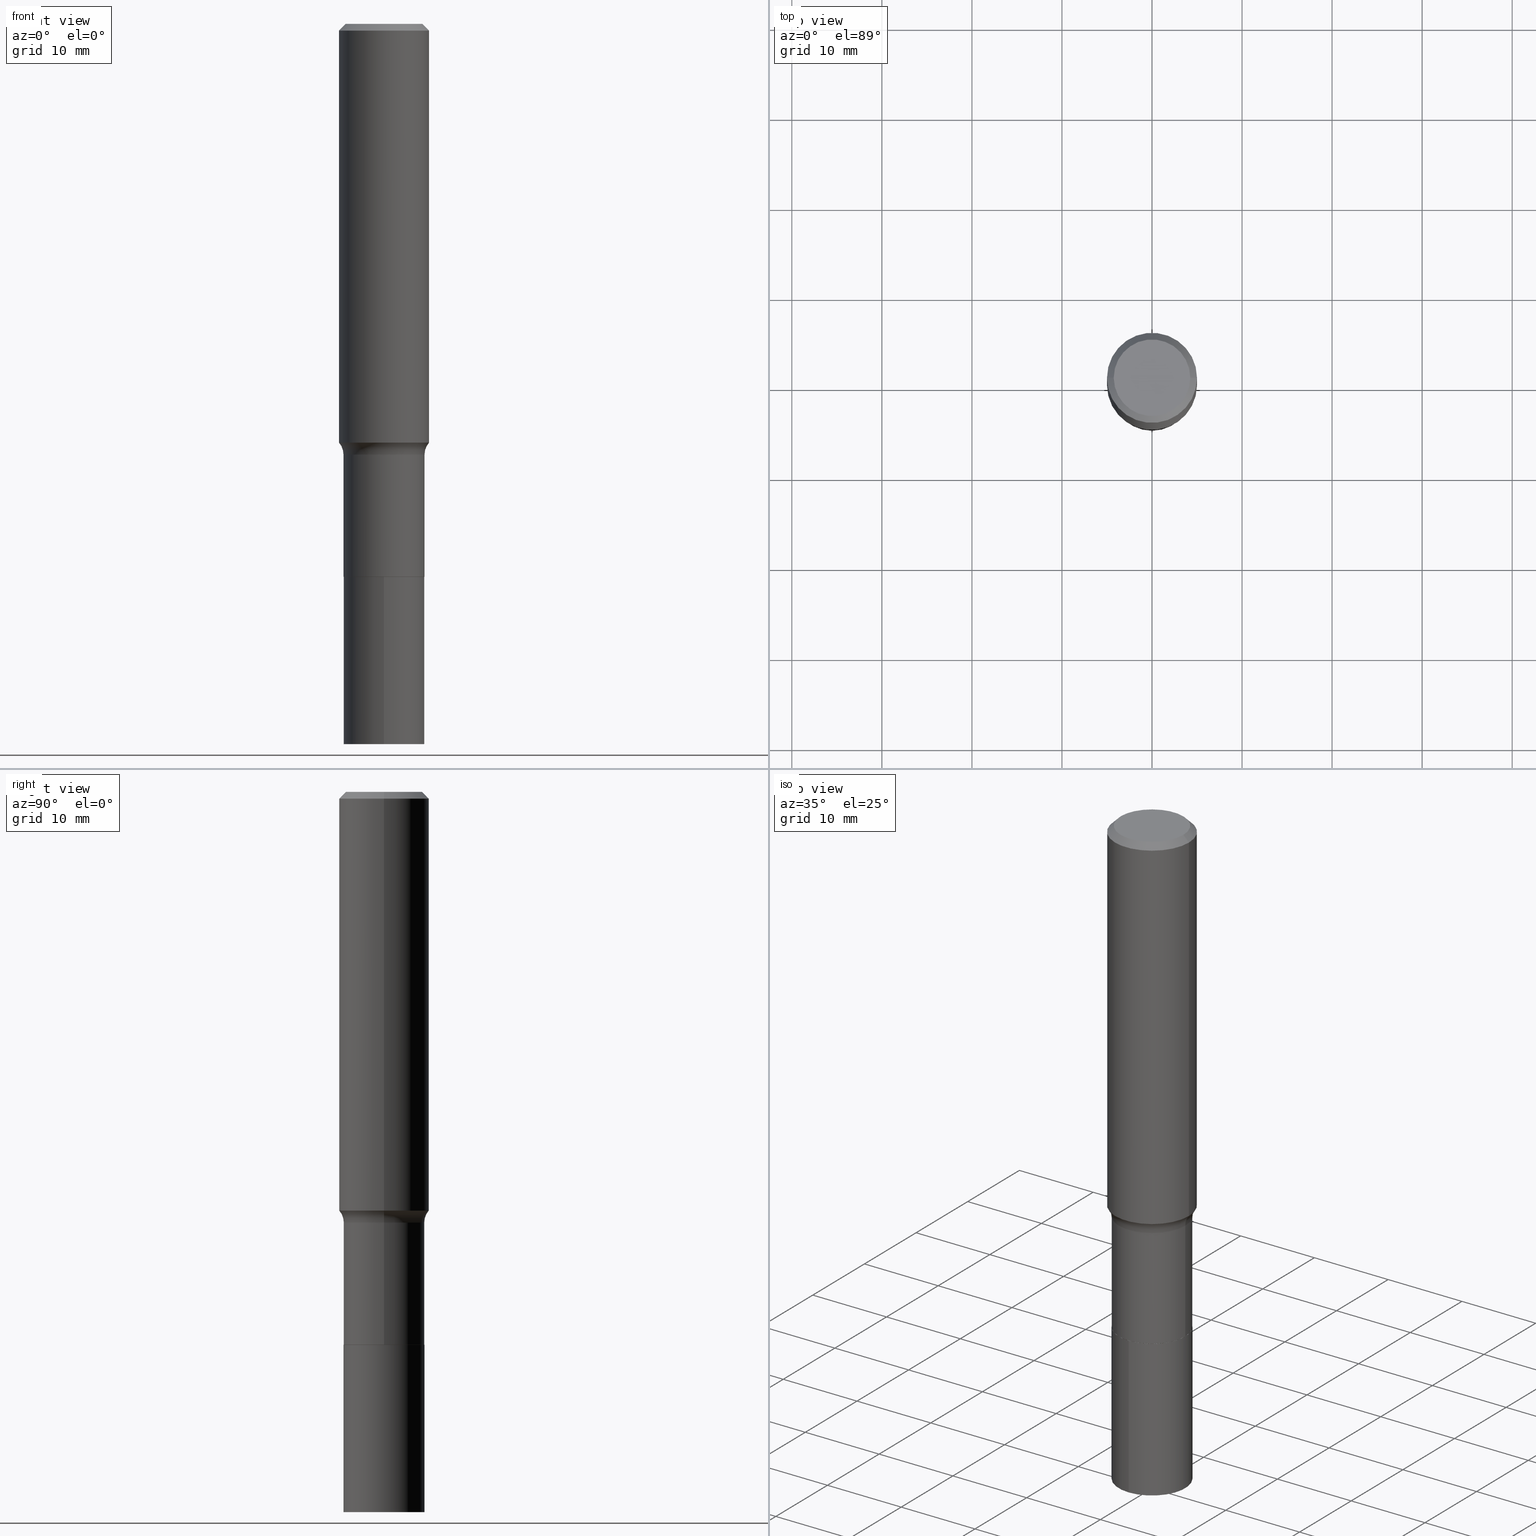
[diagram: canonical four-view strip — front | top / right | iso, engineering-drawing reading convention]
A machine part, canonical four-view strip (front | top / right | iso — engineering-drawing reading convention). The complete STEP part file that produces these views, byte-faithful:
ISO-10303-21;
HEADER;
FILE_DESCRIPTION (( 'STEP AP203' ),
    '1' );
FILE_NAME ('67137.STEP',
    '2024-04-19T15:58:38',
    ( '' ),
    ( '' ),
    'SwSTEP 2.0',
    'SolidWorks 2023',
    '' );
FILE_SCHEMA (( 'CONFIG_CONTROL_DESIGN' ));
ENDSEC;

DATA;
#1 = EDGE_LOOP ( 'NONE', ( #251, #81, #407, #382 ) ) ;
#2 = CARTESIAN_POINT ( 'NONE',  ( 1.258726456399094407E-15, 0.1771499999999915920, -2.417600000000000637 ) ) ;
#3 = ORIENTED_EDGE ( 'NONE', *, *, #271, .T. ) ;
#4 = AXIS2_PLACEMENT_3D ( 'NONE', #375, #285, #299 ) ;
#5 = AXIS2_PLACEMENT_3D ( 'NONE', #73, #464, #401 ) ;
#6 = PERSON ( 'UNSPECIFIED', 'UNSPECIFIED', 'UNSPECIFIED', ('UNSPECIFIED'), ('UNSPECIFIED'), ('UNSPECIFIED') ) ;
#7 = DIRECTION ( 'NONE',  ( -2.445468806185136597E-29, 3.491481338843145583E-15, 1.000000000000000000 ) ) ;
#8 = DIRECTION ( 'NONE',  ( 1.000000000000000000, -6.982962677686269866E-15, 0.000000000000000000 ) ) ;
#9 = EDGE_CURVE ( 'NONE', #185, #43, #102, .T. ) ;
#10 = DIRECTION ( 'NONE',  ( -0.7071067811865457964, 2.468850131082238917E-15, -0.7071067811865492381 ) ) ;
#11 = CARTESIAN_POINT ( 'NONE',  ( 0.000000000000000000, 0.000000000000000000, 0.000000000000000000 ) ) ;
#12 = DIRECTION ( 'NONE',  ( -2.445468806185136597E-29, 3.491481338843145583E-15, 1.000000000000000000 ) ) ;
#13 = AXIS2_PLACEMENT_3D ( 'NONE', #114, #7, #41 ) ;
#14 = CIRCLE ( 'NONE', #5, 0.1766500000000000015 ) ;
#15 = DIRECTION ( 'NONE',  ( 1.000000000000000000, -6.982962677686266711E-15, 0.000000000000000000 ) ) ;
#16 = CARTESIAN_POINT ( 'NONE',  ( -1.001697619218021790E-46, 1.430158722866389718E-32, 4.096137381448108366E-18 ) ) ;
#17 = EDGE_LOOP ( 'NONE', ( #402, #3, #323, #286 ) ) ;
#18 = CARTESIAN_POINT ( 'NONE',  ( -0.1968500000000000527, -1.849167880407326768E-15, -0.02952750000000019942 ) ) ;
#19 = ORIENTED_EDGE ( 'NONE', *, *, #326, .T. ) ;
#20 = APPROVAL ( #357, 'UNSPECIFIED' ) ;
#21 = DIRECTION ( 'NONE',  ( -2.445468806185136877E-29, 3.491481338843145188E-15, 1.000000000000000000 ) ) ;
#22 = AXIS2_PLACEMENT_3D ( 'NONE', #128, #126, #345 ) ;
#23 = VECTOR ( 'NONE', #144, 39.37007874015748143 ) ;
#24 = ADVANCED_BREP_SHAPE_REPRESENTATION ( '67137', ( #359, #206, #342 ), #88 ) ;
#25 = EDGE_CURVE ( 'NONE', #216, #330, #115, .T. ) ;
#26 = DIRECTION ( 'NONE',  ( 1.000000000000000000, -6.982962677686266711E-15, 4.876176775795935793E-29 ) ) ;
#27 = DIRECTION ( 'NONE',  ( 1.000000000000000000, 0.000000000000000000, 0.000000000000000000 ) ) ;
#28 = DIRECTION ( 'NONE',  ( -2.445468806185136597E-29, 3.491481338843145583E-15, 1.000000000000000000 ) ) ;
#29 = APPROVAL_PERSON_ORGANIZATION ( #463, #419, #264 ) ;
#30 = EDGE_CURVE ( 'NONE', #216, #255, #163, .T. ) ;
#31 = APPROVAL_ROLE ( '' ) ;
#32 = FACE_OUTER_BOUND ( 'NONE', #112, .T. ) ;
#33 = CC_DESIGN_PERSON_AND_ORGANIZATION_ASSIGNMENT ( #287, #77, ( #270 ) ) ;
#34 = DIRECTION ( 'NONE',  ( -6.982962677686265922E-15, -1.000000000000000000, 3.084220145260246224E-15 ) ) ;
#35 = ORIENTED_EDGE ( 'NONE', *, *, #179, .F. ) ;
#36 = ADVANCED_FACE ( 'NONE', ( #338 ), #262, .T. ) ;
#37 = CARTESIAN_POINT ( 'NONE',  ( 0.000000000000000000, 0.000000000000000000, 0.000000000000000000 ) ) ;
#38 = CONICAL_SURFACE ( 'NONE', #167, 0.1968500000000000527, 0.7853981633974458365 ) ;
#39 = ORIENTED_EDGE ( 'NONE', *, *, #439, .F. ) ;
#40 = VECTOR ( 'NONE', #50, 39.37007874015748143 ) ;
#41 = DIRECTION ( 'NONE',  ( 1.000000000000000000, -6.982962677686269866E-15, 0.000000000000000000 ) ) ;
#42 = ORIENTED_EDGE ( 'NONE', *, *, #446, .F. ) ;
#43 = VERTEX_POINT ( 'NONE', #376 ) ;
#44 = FACE_OUTER_BOUND ( 'NONE', #1, .T. ) ;
#45 = EDGE_CURVE ( 'NONE', #216, #111, #281, .T. ) ;
#46 = ORIENTED_EDGE ( 'NONE', *, *, #25, .F. ) ;
#47 = EDGE_CURVE ( 'NONE', #116, #111, #222, .T. ) ;
#48 = CONICAL_SURFACE ( 'NONE', #164, 0.1766500000000000015, 0.7853981633975849475 ) ;
#49 = APPROVAL_PERSON_ORGANIZATION ( #209, #20, #31 ) ;
#50 = DIRECTION ( 'NONE',  ( -2.445468806185136877E-29, 3.491481338843145188E-15, 1.000000000000000000 ) ) ;
#51 = LINE ( 'NONE', #195, #68 ) ;
#52 = ORIENTED_EDGE ( 'NONE', *, *, #165, .T. ) ;
#53 = EDGE_LOOP ( 'NONE', ( #220, #198, #370, #39 ) ) ;
#54 = CARTESIAN_POINT ( 'NONE',  ( 5.912165385833187270E-29, -8.441005284787188533E-15, -2.417600000000000193 ) ) ;
#55 = AXIS2_PLACEMENT_3D ( 'NONE', #337, #465, #150 ) ;
#56 = CARTESIAN_POINT ( 'NONE',  ( 0.1673224999999999851, -1.300749711163072594E-15, 4.096137381456741925E-18 ) ) ;
#57 = PRODUCT_RELATED_PRODUCT_CATEGORY ( 'detail', '', ( #139 ) ) ;
#58 = ORIENTED_EDGE ( 'NONE', *, *, #404, .T. ) ;
#59 = SHAPE_DEFINITION_REPRESENTATION ( #352, #24 ) ;
#60 = ADVANCED_FACE ( 'NONE', ( #226 ), #380, .F. ) ;
#61 = CARTESIAN_POINT ( 'NONE',  ( 5.912165385833187270E-29, -8.441005284787188533E-15, -2.417600000000000193 ) ) ;
#62 = AXIS2_PLACEMENT_3D ( 'NONE', #335, #413, #91 ) ;
#63 = DIRECTION ( 'NONE',  ( -6.982962677686265922E-15, -1.000000000000000000, 3.084220145260246224E-15 ) ) ;
#64 = ADVANCED_FACE ( 'NONE', ( #306 ), #48, .T. ) ;
#65 = DIRECTION ( 'NONE',  ( 1.000000000000000000, -6.982962677686270655E-15, 0.000000000000000000 ) ) ;
#66 = DATE_TIME_ROLE ( 'creation_date' ) ;
#67 = DIRECTION ( 'NONE',  ( 2.438088387897960049E-29, -3.491481338843145188E-15, -1.000000000000000000 ) ) ;
#68 = VECTOR ( 'NONE', #110, 39.37007874015748143 ) ;
#69 = CIRCLE ( 'NONE', #294, 0.1968500000000001915 ) ;
#70 = CC_DESIGN_APPROVAL ( #20, ( #270 ) ) ;
#71 = CARTESIAN_POINT ( 'NONE',  ( 7.220858017463210361E-31, -1.030947152326916856E-16, -0.02952750000000019942 ) ) ;
#72 = ORIENTED_EDGE ( 'NONE', *, *, #151, .T. ) ;
#73 = CARTESIAN_POINT ( 'NONE',  ( 5.912165385833187270E-29, -8.441005284787188533E-15, -2.417600000000000193 ) ) ;
#74 = DIRECTION ( 'NONE',  ( -2.446041617737093913E-29, 3.490661040098333500E-15, 1.000000000000000000 ) ) ;
#75 = DIRECTION ( 'NONE',  ( -2.445468806185136597E-29, 3.491481338843145583E-15, 1.000000000000000000 ) ) ;
#76 = VERTEX_POINT ( 'NONE', #158 ) ;
#77 = PERSON_AND_ORGANIZATION_ROLE ( 'creator' ) ;
#78 = ADVANCED_FACE ( 'NONE', ( #300 ), #438, .F. ) ;
#79 = DIRECTION ( 'NONE',  ( -6.982962677686265922E-15, -1.000000000000000000, 3.490661040098333500E-15 ) ) ;
#80 = VECTOR ( 'NONE', #191, 39.37007874015748143 ) ;
#81 = ORIENTED_EDGE ( 'NONE', *, *, #159, .T. ) ;
#82 = CARTESIAN_POINT ( 'NONE',  ( 0.1968500000000000527, -1.453583746094018101E-15, -0.02952750000000019942 ) ) ;
#83 = EDGE_LOOP ( 'NONE', ( #221, #72, #147, #290 ) ) ;
#84 = DIRECTION ( 'NONE',  ( 7.105427357601001859E-15, 1.000000000000000000, -3.491481338843145583E-15 ) ) ;
#85 = ORIENTED_EDGE ( 'NONE', *, *, #25, .T. ) ;
#86 = LINE ( 'NONE', #364, #80 ) ;
#87 = DIRECTION ( 'NONE',  ( 1.000000000000000000, -6.982962677686266711E-15, 4.876176775795935793E-29 ) ) ;
#88 =( GEOMETRIC_REPRESENTATION_CONTEXT ( 3 ) GLOBAL_UNCERTAINTY_ASSIGNED_CONTEXT ( ( #447 ) ) GLOBAL_UNIT_ASSIGNED_CONTEXT ( ( #305, #354, #104 ) ) REPRESENTATION_CONTEXT ( 'NONE', 'WORKASPACE' ) );
#89 = ORIENTED_EDGE ( 'NONE', *, *, #30, .F. ) ;
#90 = CARTESIAN_POINT ( 'NONE',  ( 0.1968500000000000527, -1.477690918335233688E-15, -0.02952750000000019942 ) ) ;
#91 = DIRECTION ( 'NONE',  ( 1.000000000000000000, -6.982962677686268288E-15, 0.000000000000000000 ) ) ;
#92 = DIRECTION ( 'NONE',  ( -2.445468806185136597E-29, 3.491481338843145583E-15, 1.000000000000000000 ) ) ;
#93 = ORIENTED_EDGE ( 'NONE', *, *, #151, .F. ) ;
#94 = TOROIDAL_SURFACE ( 'NONE', #356, 0.2571499999999999342, 0.07999999999999998779 ) ;
#95 = AXIS2_PLACEMENT_3D ( 'NONE', #61, #171, #450 ) ;
#96 = DIRECTION ( 'NONE',  ( 1.000000000000000000, -6.982962677686265922E-15, 4.883557194083112901E-29 ) ) ;
#97 = DIRECTION ( 'NONE',  ( -6.982962677686265922E-15, -1.000000000000000000, 3.084220145260246224E-15 ) ) ;
#98 = DIRECTION ( 'NONE',  ( -2.445468806185136597E-29, 3.491481338843145583E-15, 1.000000000000000000 ) ) ;
#99 = DIRECTION ( 'NONE',  ( 1.000000000000000000, -6.982962677686267499E-15, 4.876294436782262290E-29 ) ) ;
#100 = PRODUCT_DEFINITION ( 'UNKNOWN', '', #270, #267 ) ;
#101 = DIRECTION ( 'NONE',  ( 1.000000000000000000, -6.982962677686265922E-15, 4.883557194083112901E-29 ) ) ;
#102 = CIRCLE ( 'NONE', #367, 0.1771500000000000019 ) ;
#103 = APPROVAL_PERSON_ORGANIZATION ( #177, #125, #239 ) ;
#104 =( NAMED_UNIT ( * ) SI_UNIT ( $, .STERADIAN. ) SOLID_ANGLE_UNIT ( ) );
#105 = CALENDAR_DATE ( 2024, 19, 4 ) ;
#106 = FACE_OUTER_BOUND ( 'NONE', #215, .T. ) ;
#107 = LINE ( 'NONE', #459, #23 ) ;
#108 = VECTOR ( 'NONE', #119, 39.37007874015748143 ) ;
#109 = ORIENTED_EDGE ( 'NONE', *, *, #418, .F. ) ;
#110 = DIRECTION ( 'NONE',  ( -0.7071067811866441621, 7.493145998870704414E-15, 0.7071067811864508723 ) ) ;
#111 = VERTEX_POINT ( 'NONE', #157 ) ;
#112 = EDGE_LOOP ( 'NONE', ( #93, #461, #52, #218 ) ) ;
#113 = PERSON_AND_ORGANIZATION ( #6, #350 ) ;
#114 = CARTESIAN_POINT ( 'NONE',  ( 5.912165385833187270E-29, -8.441005284787188533E-15, -2.417600000000000193 ) ) ;
#115 = CIRCLE ( 'NONE', #175, 0.1968500000000001915 ) ;
#116 = VERTEX_POINT ( 'NONE', #292 ) ;
#117 = LOCAL_TIME ( 11, 58, 38.00000000000000000, #456 ) ;
#118 = EDGE_CURVE ( 'NONE', #330, #116, #453, .T. ) ;
#119 = DIRECTION ( 'NONE',  ( 0.7071067811865457964, -7.319954787623249734E-15, -0.7071067811865492381 ) ) ;
#120 = ORIENTED_EDGE ( 'NONE', *, *, #45, .F. ) ;
#121 = DIRECTION ( 'NONE',  ( 1.000000000000000000, -6.982962677686266711E-15, 4.876176775795935793E-29 ) ) ;
#122 = ORIENTED_EDGE ( 'NONE', *, *, #208, .T. ) ;
#123 = EDGE_LOOP ( 'NONE', ( #320, #154 ) ) ;
#124 = VERTEX_POINT ( 'NONE', #2 ) ;
#125 = APPROVAL ( #137, 'UNSPECIFIED' ) ;
#126 = DIRECTION ( 'NONE',  ( 2.446041617737093913E-29, -3.490661040098333500E-15, -1.000000000000000000 ) ) ;
#127 = DIRECTION ( 'NONE',  ( -2.438088387897960049E-29, 3.491481338843145188E-15, 1.000000000000000000 ) ) ;
#128 = CARTESIAN_POINT ( 'NONE',  ( 5.912165385833187270E-29, -8.441005284787188533E-15, -2.417600000000000193 ) ) ;
#129 = AXIS2_PLACEMENT_3D ( 'NONE', #414, #347, #415 ) ;
#130 = AXIS2_PLACEMENT_3D ( 'NONE', #244, #138, #63 ) ;
#131 = CLOSED_SHELL ( 'NONE', ( #64, #197, #214, #318, #388, #36, #273, #194, #377, #363, #60, #176 ) ) ;
#132 = APPLICATION_CONTEXT ( 'configuration controlled 3d designs of mechanical parts and assemblies' ) ;
#133 = COORDINATED_UNIVERSAL_TIME_OFFSET ( 5, 0, .BEHIND. ) ;
#134 = CARTESIAN_POINT ( 'NONE',  ( 4.606040496449705381E-29, -6.576205101711065057E-15, -1.883500000000000174 ) ) ;
#135 = LINE ( 'NONE', #371, #40 ) ;
#136 = DIRECTION ( 'NONE',  ( 1.000000000000000000, -6.982962677686267499E-15, 4.876294436782262290E-29 ) ) ;
#137 = APPROVAL_STATUS ( 'not_yet_approved' ) ;
#138 = DIRECTION ( 'NONE',  ( -2.446041617737093913E-29, 3.490661040098333894E-15, 1.000000000000000000 ) ) ;
#139 = PRODUCT ( '67137', '67137', '', ( #393 ) ) ;
#140 = CARTESIAN_POINT ( 'NONE',  ( -5.008488096090108951E-47, 7.150793614331948590E-33, 2.048068690724054183E-18 ) ) ;
#141 = DATE_AND_TIME ( #385, #117 ) ;
#142 = CARTESIAN_POINT ( 'NONE',  ( 0.000000000000000000, 0.000000000000000000, 0.000000000000000000 ) ) ;
#143 = EDGE_LOOP ( 'NONE', ( #188, #327, #399, #190 ) ) ;
#144 = DIRECTION ( 'NONE',  ( 0.7071067811866441621, -2.468850131083269169E-15, 0.7071067811864508723 ) ) ;
#145 = EDGE_CURVE ( 'NONE', #255, #223, #217, .T. ) ;
#146 = DIMENSIONAL_EXPONENTS ( 1.000000000000000000, 0.000000000000000000, 0.000000000000000000, 0.000000000000000000, 0.000000000000000000, 0.000000000000000000, 0.000000000000000000 ) ;
#147 = ORIENTED_EDGE ( 'NONE', *, *, #145, .T. ) ;
#148 = FACE_OUTER_BOUND ( 'NONE', #17, .T. ) ;
#149 = ORIENTED_EDGE ( 'NONE', *, *, #118, .T. ) ;
#150 = DIRECTION ( 'NONE',  ( 1.000000000000000000, -6.982962677686266711E-15, 0.000000000000000000 ) ) ;
#151 = EDGE_CURVE ( 'NONE', #280, #255, #250, .T. ) ;
#152 = ORIENTED_EDGE ( 'NONE', *, *, #118, .F. ) ;
#153 = VECTOR ( 'NONE', #21, 39.37007874015748143 ) ;
#154 = ORIENTED_EDGE ( 'NONE', *, *, #260, .T. ) ;
#155 = LOCAL_TIME ( 11, 58, 38.00000000000000000, #366 ) ;
#156 = CC_DESIGN_DATE_AND_TIME_ASSIGNMENT ( #242, #66, ( #100 ) ) ;
#157 = CARTESIAN_POINT ( 'NONE',  ( 0.1771499999999999742, -7.813236940063187450E-15, -1.883500000000000174 ) ) ;
#158 = CARTESIAN_POINT ( 'NONE',  ( 0.1766500000000000015, -9.674545641800469497E-15, -2.417600000000000193 ) ) ;
#159 = EDGE_CURVE ( 'NONE', #458, #76, #405, .T. ) ;
#160 = VERTEX_POINT ( 'NONE', #254 ) ;
#161 = CARTESIAN_POINT ( 'NONE',  ( 0.1968500000000001915, -7.767243999372021400E-15, -1.830927098234927053 ) ) ;
#162 = SECURITY_CLASSIFICATION_LEVEL ( 'unclassified' ) ;
#163 = LINE ( 'NONE', #265, #302 ) ;
#164 = AXIS2_PLACEMENT_3D ( 'NONE', #343, #266, #8 ) ;
#165 = EDGE_CURVE ( 'NONE', #181, #223, #468, .T. ) ;
#166 = ORIENTED_EDGE ( 'NONE', *, *, #233, .T. ) ;
#167 = AXIS2_PLACEMENT_3D ( 'NONE', #219, #259, #409 ) ;
#168 = CC_DESIGN_DATE_AND_TIME_ASSIGNMENT ( #252, #403, ( #322 ) ) ;
#169 = AXIS2_PLACEMENT_3D ( 'NONE', #355, #241, #274 ) ;
#170 = PERSON_AND_ORGANIZATION ( #6, #350 ) ;
#171 = DIRECTION ( 'NONE',  ( -2.446041617737093913E-29, 3.490661040098333894E-15, 1.000000000000000000 ) ) ;
#172 = CARTESIAN_POINT ( 'NONE',  ( 0.1771500000000000574, -9.676291382469891790E-15, -2.417100000000000470 ) ) ;
#173 = CALENDAR_DATE ( 2024, 19, 4 ) ;
#174 = CARTESIAN_POINT ( 'NONE',  ( 5.912165385833187270E-29, -8.441005284787188533E-15, -2.417600000000000193 ) ) ;
#175 = AXIS2_PLACEMENT_3D ( 'NONE', #410, #12, #202 ) ;
#176 = ADVANCED_FACE ( 'NONE', ( #44 ), #349, .T. ) ;
#177 = PERSON_AND_ORGANIZATION ( #6, #350 ) ;
#178 = CARTESIAN_POINT ( 'NONE',  ( 7.220858017463210361E-31, -1.030947152326916856E-16, -0.02952750000000019942 ) ) ;
#179 = EDGE_CURVE ( 'NONE', #43, #124, #86, .T. ) ;
#180 = FACE_OUTER_BOUND ( 'NONE', #123, .T. ) ;
#181 = VERTEX_POINT ( 'NONE', #187 ) ;
#182 = TOROIDAL_SURFACE ( 'NONE', #441, 0.2571499999999999342, 0.07999999999999998779 ) ;
#183 = DIRECTION ( 'NONE',  ( 1.000000000000000000, -6.982962677686266711E-15, 4.876176775795935793E-29 ) ) ;
#184 = CONICAL_SURFACE ( 'NONE', #283, 0.1968500000000000527, 0.7853981633974458365 ) ;
#185 = VERTEX_POINT ( 'NONE', #295 ) ;
#186 = PERSON_AND_ORGANIZATION_ROLE ( 'classification_officer' ) ;
#187 = CARTESIAN_POINT ( 'NONE',  ( -0.1673224999999999851, 1.219954130253505460E-15, 4.096137381439757534E-18 ) ) ;
#188 = ORIENTED_EDGE ( 'NONE', *, *, #284, .F. ) ;
#189 = CARTESIAN_POINT ( 'NONE',  ( 2.126883191582343757E-28, 8.431349914202975217E-15, -3.149599999999999511 ) ) ;
#190 = ORIENTED_EDGE ( 'NONE', *, *, #47, .F. ) ;
#191 = DIRECTION ( 'NONE',  ( -2.446041617737093913E-29, 3.490661040098333500E-15, 1.000000000000000000 ) ) ;
#192 = AXIS2_PLACEMENT_3D ( 'NONE', #54, #127, #199 ) ;
#193 = ORIENTED_EDGE ( 'NONE', *, *, #298, .T. ) ;
#194 = ADVANCED_FACE ( 'NONE', ( #148 ), #437, .T. ) ;
#195 = CARTESIAN_POINT ( 'NONE',  ( -0.1766500000000000015, -7.185831542066971741E-15, -2.417600000000000193 ) ) ;
#196 = ORIENTED_EDGE ( 'NONE', *, *, #404, .F. ) ;
#197 = ADVANCED_FACE ( 'NONE', ( #429 ), #38, .T. ) ;
#198 = ORIENTED_EDGE ( 'NONE', *, *, #284, .T. ) ;
#199 = DIRECTION ( 'NONE',  ( 1.000000000000000000, -6.982962677686265922E-15, 4.876176775795935793E-29 ) ) ;
#200 = AXIS2_PLACEMENT_3D ( 'NONE', #310, #449, #97 ) ;
#201 = FACE_OUTER_BOUND ( 'NONE', #373, .T. ) ;
#202 = DIRECTION ( 'NONE',  ( 1.000000000000000000, -6.982962677686266711E-15, 0.000000000000000000 ) ) ;
#203 = CIRCLE ( 'NONE', #435, 0.1673224999999999851 ) ;
#204 = PERSON_AND_ORGANIZATION_ROLE ( 'design_owner' ) ;
#205 = DIRECTION ( 'NONE',  ( 1.000000000000000000, -6.982962677686266711E-15, 0.000000000000000000 ) ) ;
#206 = MANIFOLD_SOLID_BREP ( 'Body-Move/Copy2[2]', #131 ) ;
#207 = CYLINDRICAL_SURFACE ( 'NONE', #212, 0.1771500000000000019 ) ;
#208 = EDGE_CURVE ( 'NONE', #458, #316, #51, .T. ) ;
#209 = PERSON_AND_ORGANIZATION ( #6, #350 ) ;
#210 = DIRECTION ( 'NONE',  ( -1.000000000000000000, 6.982962677686265922E-15, -4.876176775795935793E-29 ) ) ;
#211 = AXIS2_PLACEMENT_3D ( 'NONE', #257, #432, #121 ) ;
#212 = AXIS2_PLACEMENT_3D ( 'NONE', #174, #351, #34 ) ;
#213 = CARTESIAN_POINT ( 'NONE',  ( -1.001697619218021790E-46, 1.430158722866389718E-32, 4.096137381448108366E-18 ) ) ;
#214 = ADVANCED_FACE ( 'NONE', ( #248 ), #398, .T. ) ;
#215 = EDGE_LOOP ( 'NONE', ( #436, #149, #249, #120 ) ) ;
#216 = VERTEX_POINT ( 'NONE', #161 ) ;
#217 = CIRCLE ( 'NONE', #55, 0.1968500000000000527 ) ;
#218 = ORIENTED_EDGE ( 'NONE', *, *, #360, .T. ) ;
#219 = CARTESIAN_POINT ( 'NONE',  ( 7.220858017463210361E-31, -1.030947152326916856E-16, -0.02952750000000019942 ) ) ;
#220 = ORIENTED_EDGE ( 'NONE', *, *, #312, .T. ) ;
#221 = ORIENTED_EDGE ( 'NONE', *, *, #260, .F. ) ;
#222 = CIRCLE ( 'NONE', #62, 0.1771499999999999742 ) ;
#223 = VERTEX_POINT ( 'NONE', #18 ) ;
#224 = ORIENTED_EDGE ( 'NONE', *, *, #179, .T. ) ;
#225 = LENGTH_MEASURE_WITH_UNIT ( LENGTH_MEASURE( 0.02539999999999999897 ), #411 );
#226 = FACE_OUTER_BOUND ( 'NONE', #425, .T. ) ;
#227 = FACE_OUTER_BOUND ( 'NONE', #455, .T. ) ;
#228 = EDGE_LOOP ( 'NONE', ( #397, #379 ) ) ;
#229 = VECTOR ( 'NONE', #10, 39.37007874015748143 ) ;
#230 = CIRCLE ( 'NONE', #169, 0.1771500000000000574 ) ;
#231 = LINE ( 'NONE', #383, #153 ) ;
#232 = CARTESIAN_POINT ( 'NONE',  ( 4.606040496449705381E-29, -6.576205101711065057E-15, -1.883500000000000174 ) ) ;
#233 = EDGE_CURVE ( 'NONE', #43, #185, #424, .T. ) ;
#234 = CARTESIAN_POINT ( 'NONE',  ( 0.000000000000000000, 0.000000000000000000, 0.000000000000000000 ) ) ;
#235 = FACE_OUTER_BOUND ( 'NONE', #451, .T. ) ;
#236 = CIRCLE ( 'NONE', #130, 0.1771500000000000019 ) ;
#237 = APPLICATION_PROTOCOL_DEFINITION ( 'international standard', 'config_control_design', 1994, #272 ) ;
#238 = AXIS2_PLACEMENT_3D ( 'NONE', #140, #67, #210 ) ;
#239 = APPROVAL_ROLE ( '' ) ;
#240 = EDGE_CURVE ( 'NONE', #111, #116, #416, .T. ) ;
#241 = DIRECTION ( 'NONE',  ( -2.445468806185136597E-29, 3.491481338843145583E-15, 1.000000000000000000 ) ) ;
#242 = DATE_AND_TIME ( #105, #368 ) ;
#243 = EDGE_CURVE ( 'NONE', #181, #280, #313, .T. ) ;
#244 = CARTESIAN_POINT ( 'NONE',  ( 5.912165385833187270E-29, -8.441005284787188533E-15, -2.417600000000000193 ) ) ;
#245 = DIRECTION ( 'NONE',  ( 0.000000000000000000, 0.000000000000000000, 1.000000000000000000 ) ) ;
#246 = CC_DESIGN_SECURITY_CLASSIFICATION ( #322, ( #270 ) ) ;
#247 = ORIENTED_EDGE ( 'NONE', *, *, #298, .F. ) ;
#248 = FACE_OUTER_BOUND ( 'NONE', #258, .T. ) ;
#249 = ORIENTED_EDGE ( 'NONE', *, *, #47, .T. ) ;
#250 = LINE ( 'NONE', #82, #108 ) ;
#251 = ORIENTED_EDGE ( 'NONE', *, *, #208, .F. ) ;
#252 = DATE_AND_TIME ( #467, #277 ) ;
#253 = AXIS2_PLACEMENT_3D ( 'NONE', #11, #301, #87 ) ;
#254 = CARTESIAN_POINT ( 'NONE',  ( -1.237031838352062835E-15, -0.1771500000000084396, -2.417599999999999749 ) ) ;
#255 = VERTEX_POINT ( 'NONE', #90 ) ;
#256 = ADVANCED_FACE ( 'NONE', ( #201 ), #263, .F. ) ;
#257 = CARTESIAN_POINT ( 'NONE',  ( 0.000000000000000000, 0.000000000000000000, 0.000000000000000000 ) ) ;
#258 = EDGE_LOOP ( 'NONE', ( #85, #297, #408, #89 ) ) ;
#259 = DIRECTION ( 'NONE',  ( 2.445468806185136597E-29, -3.491481338843145583E-15, -1.000000000000000000 ) ) ;
#260 = EDGE_CURVE ( 'NONE', #280, #181, #203, .T. ) ;
#261 = ORIENTED_EDGE ( 'NONE', *, *, #45, .T. ) ;
#262 = CYLINDRICAL_SURFACE ( 'NONE', #253, 0.1771500000000000019 ) ;
#263 = PLANE ( 'NONE',  #22 ) ;
#264 = APPROVAL_ROLE ( '' ) ;
#265 = CARTESIAN_POINT ( 'NONE',  ( 0.1968500000000001082, -1.374596203102542397E-15, 9.598753983154305062E-30 ) ) ;
#266 = DIRECTION ( 'NONE',  ( -2.445468806185136597E-29, 3.491481338843145583E-15, 1.000000000000000000 ) ) ;
#267 = DESIGN_CONTEXT ( 'detailed design', #132, 'design' ) ;
#268 = AXIS2_PLACEMENT_3D ( 'NONE', #333, #84, #328 ) ;
#269 = CIRCLE ( 'NONE', #395, 0.1771500000000000019 ) ;
#270 = PRODUCT_DEFINITION_FORMATION_WITH_SPECIFIED_SOURCE ( 'ANY', '', #139, .NOT_KNOWN. ) ;
#271 = EDGE_CURVE ( 'NONE', #330, #216, #69, .T. ) ;
#272 = APPLICATION_CONTEXT ( 'configuration controlled 3d designs of mechanical parts and assemblies' ) ;
#273 = ADVANCED_FACE ( 'NONE', ( #227 ), #94, .F. ) ;
#274 = DIRECTION ( 'NONE',  ( 1.000000000000000000, -6.982962677686270655E-15, 0.000000000000000000 ) ) ;
#275 = CARTESIAN_POINT ( 'NONE',  ( 4.477475105132583677E-29, -6.392647796269479003E-15, -1.830927098234927053 ) ) ;
#276 = APPROVAL_DATE_TIME ( #278, #125 ) ;
#277 = LOCAL_TIME ( 11, 58, 38.00000000000000000, #324 ) ;
#278 = DATE_AND_TIME ( #173, #462 ) ;
#279 = LINE ( 'NONE', #319, #308 ) ;
#280 = VERTEX_POINT ( 'NONE', #56 ) ;
#281 = CIRCLE ( 'NONE', #129, 0.07999999999999996003 ) ;
#282 = CARTESIAN_POINT ( 'NONE',  ( -0.1968500000000001915, -4.993944420925722004E-15, -1.830927098234927053 ) ) ;
#283 = AXIS2_PLACEMENT_3D ( 'NONE', #178, #311, #361 ) ;
#284 = EDGE_CURVE ( 'NONE', #316, #116, #231, .T. ) ;
#285 = DIRECTION ( 'NONE',  ( -2.445468806185136597E-29, 3.491481338843145583E-15, 1.000000000000000000 ) ) ;
#286 = ORIENTED_EDGE ( 'NONE', *, *, #360, .F. ) ;
#287 = PERSON_AND_ORGANIZATION ( #6, #350 ) ;
#288 = DIRECTION ( 'NONE',  ( -2.445468806185136597E-29, 3.491481338843145583E-15, 1.000000000000000000 ) ) ;
#289 = CC_DESIGN_PERSON_AND_ORGANIZATION_ASSIGNMENT ( #170, #204, ( #139 ) ) ;
#290 = ORIENTED_EDGE ( 'NONE', *, *, #165, .F. ) ;
#291 = PERSON_AND_ORGANIZATION_ROLE ( 'design_supplier' ) ;
#292 = CARTESIAN_POINT ( 'NONE',  ( -0.1771499999999999742, -6.249005866515399536E-15, -1.883500000000000174 ) ) ;
#293 = ORIENTED_EDGE ( 'NONE', *, *, #9, .T. ) ;
#294 = AXIS2_PLACEMENT_3D ( 'NONE', #275, #98, #15 ) ;
#295 = CARTESIAN_POINT ( 'NONE',  ( -1.237031838352045086E-15, -0.1771500000000110209, -3.149599999999998623 ) ) ;
#296 = CC_DESIGN_APPROVAL ( #419, ( #322 ) ) ;
#297 = ORIENTED_EDGE ( 'NONE', *, *, #339, .T. ) ;
#298 = EDGE_CURVE ( 'NONE', #160, #124, #269, .T. ) ;
#299 = DIRECTION ( 'NONE',  ( 1.000000000000000000, -6.982962677686269866E-15, 0.000000000000000000 ) ) ;
#300 = FACE_OUTER_BOUND ( 'NONE', #228, .T. ) ;
#301 = DIRECTION ( 'NONE',  ( -2.445468806185136597E-29, 3.491481338843145583E-15, 1.000000000000000000 ) ) ;
#302 = VECTOR ( 'NONE', #444, 39.37007874015748143 ) ;
#303 = PERSON_AND_ORGANIZATION ( #6, #350 ) ;
#304 = CARTESIAN_POINT ( 'NONE',  ( 7.702667850016737193E-29, -1.099616916613916713E-14, -3.149599999999999067 ) ) ;
#305 =( CONVERSION_BASED_UNIT ( 'INCH', #225 ) LENGTH_UNIT ( ) NAMED_UNIT ( #146 ) );
#306 = FACE_OUTER_BOUND ( 'NONE', #466, .T. ) ;
#307 = AXIS2_PLACEMENT_3D ( 'NONE', #189, #74, #79 ) ;
#308 = VECTOR ( 'NONE', #423, 39.37007874015748143 ) ;
#309 = DIRECTION ( 'NONE',  ( -6.982962677686265922E-15, -1.000000000000000000, 3.084220145260246224E-15 ) ) ;
#310 = CARTESIAN_POINT ( 'NONE',  ( 7.702667850016737193E-29, -1.099616916613916713E-14, -3.149599999999999067 ) ) ;
#311 = DIRECTION ( 'NONE',  ( 2.445468806185136597E-29, -3.491481338843145583E-15, -1.000000000000000000 ) ) ;
#312 = EDGE_CURVE ( 'NONE', #362, #316, #321, .T. ) ;
#313 = CIRCLE ( 'NONE', #381, 0.1673224999999999851 ) ;
#314 = COORDINATED_UNIVERSAL_TIME_OFFSET ( 5, 0, .BEHIND. ) ;
#315 = LINE ( 'NONE', #358, #442 ) ;
#316 = VERTEX_POINT ( 'NONE', #353 ) ;
#317 = FACE_OUTER_BOUND ( 'NONE', #53, .T. ) ;
#318 = ADVANCED_FACE ( 'NONE', ( #106 ), #182, .F. ) ;
#319 = CARTESIAN_POINT ( 'NONE',  ( -1.237031838352062835E-15, -0.1771500000000084396, -2.417599999999999749 ) ) ;
#320 = ORIENTED_EDGE ( 'NONE', *, *, #243, .T. ) ;
#321 = CIRCLE ( 'NONE', #387, 0.1771500000000000574 ) ;
#322 = SECURITY_CLASSIFICATION ( '', '', #162 ) ;
#323 = ORIENTED_EDGE ( 'NONE', *, *, #30, .T. ) ;
#324 = COORDINATED_UNIVERSAL_TIME_OFFSET ( 5, 0, .BEHIND. ) ;
#325 = CARTESIAN_POINT ( 'NONE',  ( -0.1766500000000000015, -7.183182314892861329E-15, -2.417600000000000193 ) ) ;
#326 = EDGE_CURVE ( 'NONE', #124, #160, #236, .T. ) ;
#327 = ORIENTED_EDGE ( 'NONE', *, *, #329, .T. ) ;
#328 = DIRECTION ( 'NONE',  ( -1.000000000000000000, 7.105427357601001859E-15, 0.000000000000000000 ) ) ;
#329 = EDGE_CURVE ( 'NONE', #316, #362, #230, .T. ) ;
#330 = VERTEX_POINT ( 'NONE', #282 ) ;
#331 = ADVANCED_FACE ( 'NONE', ( #396 ), #207, .T. ) ;
#332 = AXIS2_PLACEMENT_3D ( 'NONE', #134, #92, #448 ) ;
#333 = CARTESIAN_POINT ( 'NONE',  ( -0.2571499999999999342, -4.749044456703968291E-15, -1.883500000000000174 ) ) ;
#334 = CIRCLE ( 'NONE', #374, 0.1968500000000000527 ) ;
#335 = CARTESIAN_POINT ( 'NONE',  ( 4.606040496449705381E-29, -6.576205101711065057E-15, -1.883500000000000174 ) ) ;
#336 = CC_DESIGN_PERSON_AND_ORGANIZATION_ASSIGNMENT ( #113, #291, ( #270 ) ) ;
#337 = CARTESIAN_POINT ( 'NONE',  ( 7.220858017463210361E-31, -1.030947152326916856E-16, -0.02952750000000019942 ) ) ;
#338 = FACE_OUTER_BOUND ( 'NONE', #143, .T. ) ;
#339 = EDGE_CURVE ( 'NONE', #330, #223, #315, .T. ) ;
#340 = DIRECTION ( 'NONE',  ( -2.446041617737093913E-29, 3.490661040098333894E-15, 1.000000000000000000 ) ) ;
#341 = DATE_AND_TIME ( #427, #155 ) ;
#342 = AXIS2_PLACEMENT_3D ( 'NONE', #234, #245, #27 ) ;
#343 = CARTESIAN_POINT ( 'NONE',  ( 5.912165385833187270E-29, -8.441005284787188533E-15, -2.417600000000000193 ) ) ;
#344 = DIRECTION ( 'NONE',  ( -2.445468806185136597E-29, 3.491481338843145583E-15, 1.000000000000000000 ) ) ;
#345 = DIRECTION ( 'NONE',  ( 6.982962677686265922E-15, 1.000000000000000000, -3.490661040098333500E-15 ) ) ;
#346 = APPROVAL_DATE_TIME ( #341, #419 ) ;
#347 = DIRECTION ( 'NONE',  ( -6.982962677686266711E-15, -1.000000000000000000, 3.491481338843145583E-15 ) ) ;
#348 = DIRECTION ( 'NONE',  ( -2.445468806185136597E-29, 3.491481338843145583E-15, 1.000000000000000000 ) ) ;
#349 = CONICAL_SURFACE ( 'NONE', #4, 0.1766500000000000015, 0.7853981633975849475 ) ;
#350 = ORGANIZATION ( 'UNSPECIFIED', 'UNSPECIFIED', '' ) ;
#351 = DIRECTION ( 'NONE',  ( -2.446041617737093913E-29, 3.490661040098333894E-15, 1.000000000000000000 ) ) ;
#352 = PRODUCT_DEFINITION_SHAPE ( 'NONE', 'NONE',  #100 ) ;
#353 = CARTESIAN_POINT ( 'NONE',  ( -0.1771500000000000574, -6.249005866515399536E-15, -2.417100000000000470 ) ) ;
#354 =( NAMED_UNIT ( * ) PLANE_ANGLE_UNIT ( ) SI_UNIT ( $, .RADIAN. ) );
#355 = CARTESIAN_POINT ( 'NONE',  ( 5.910942651430094468E-29, -8.439259544117767818E-15, -2.417100000000000470 ) ) ;
#356 = AXIS2_PLACEMENT_3D ( 'NONE', #232, #344, #96 ) ;
#357 = APPROVAL_STATUS ( 'not_yet_approved' ) ;
#358 = CARTESIAN_POINT ( 'NONE',  ( -0.1968500000000001082, 1.398703375343757985E-15, -9.682923725166787881E-30 ) ) ;
#359 = MANIFOLD_SOLID_BREP ( 'Body-Move/Copy2[1]', #460 ) ;
#360 = EDGE_CURVE ( 'NONE', #223, #255, #334, .T. ) ;
#361 = DIRECTION ( 'NONE',  ( -1.000000000000000000, 6.982962677686266711E-15, 0.000000000000000000 ) ) ;
#362 = VERTEX_POINT ( 'NONE', #172 ) ;
#363 = ADVANCED_FACE ( 'NONE', ( #180 ), #394, .F. ) ;
#364 = CARTESIAN_POINT ( 'NONE',  ( 1.258726456399076460E-15, 0.1771499999999915920, -2.417600000000000637 ) ) ;
#365 = ORIENTED_EDGE ( 'NONE', *, *, #159, .F. ) ;
#366 = COORDINATED_UNIVERSAL_TIME_OFFSET ( 5, 0, .BEHIND. ) ;
#367 = AXIS2_PLACEMENT_3D ( 'NONE', #304, #340, #445 ) ;
#368 = LOCAL_TIME ( 11, 58, 38.00000000000000000, #314 ) ;
#369 = EDGE_LOOP ( 'NONE', ( #35, #166, #58, #430 ) ) ;
#370 = ORIENTED_EDGE ( 'NONE', *, *, #240, .F. ) ;
#371 = CARTESIAN_POINT ( 'NONE',  ( 0.1771500000000000019, -1.237031838352122197E-15, 8.638147158322499960E-30 ) ) ;
#372 = CARTESIAN_POINT ( 'NONE',  ( -0.1968500000000000527, 1.271501487869850317E-15, -0.02952750000000019942 ) ) ;
#373 = EDGE_LOOP ( 'NONE', ( #193, #19 ) ) ;
#374 = AXIS2_PLACEMENT_3D ( 'NONE', #71, #28, #205 ) ;
#375 = CARTESIAN_POINT ( 'NONE',  ( 5.912165385833187270E-29, -8.441005284787188533E-15, -2.417600000000000193 ) ) ;
#376 = CARTESIAN_POINT ( 'NONE',  ( 1.258726456399085335E-15, 0.1771499999999890107, -3.149599999999999511 ) ) ;
#377 = ADVANCED_FACE ( 'NONE', ( #32 ), #184, .T. ) ;
#378 = CARTESIAN_POINT ( 'NONE',  ( 5.910942651430094468E-29, -8.439259544117767818E-15, -2.417100000000000470 ) ) ;
#379 = ORIENTED_EDGE ( 'NONE', *, *, #233, .F. ) ;
#380 = PLANE ( 'NONE',  #192 ) ;
#381 = AXIS2_PLACEMENT_3D ( 'NONE', #16, #348, #99 ) ;
#382 = ORIENTED_EDGE ( 'NONE', *, *, #329, .F. ) ;
#383 = CARTESIAN_POINT ( 'NONE',  ( -0.1771500000000000019, 1.258726456399017493E-15, -8.713893512386565325E-30 ) ) ;
#384 = CARTESIAN_POINT ( 'NONE',  ( 5.912165385833187270E-29, -8.441005284787188533E-15, -2.417600000000000193 ) ) ;
#385 = CALENDAR_DATE ( 2024, 19, 4 ) ;
#386 = CYLINDRICAL_SURFACE ( 'NONE', #95, 0.1771500000000000019 ) ;
#387 = AXIS2_PLACEMENT_3D ( 'NONE', #378, #392, #65 ) ;
#388 = ADVANCED_FACE ( 'NONE', ( #317 ), #457, .T. ) ;
#389 = CARTESIAN_POINT ( 'NONE',  ( 4.606040496449705381E-29, -6.576205101711065057E-15, -1.883500000000000174 ) ) ;
#390 = PERSON_AND_ORGANIZATION_ROLE ( 'creator' ) ;
#391 = CC_DESIGN_PERSON_AND_ORGANIZATION_ASSIGNMENT ( #420, #390, ( #100 ) ) ;
#392 = DIRECTION ( 'NONE',  ( -2.445468806185136597E-29, 3.491481338843145583E-15, 1.000000000000000000 ) ) ;
#393 = MECHANICAL_CONTEXT ( 'NONE', #272, 'mechanical' ) ;
#394 = PLANE ( 'NONE',  #238 ) ;
#395 = AXIS2_PLACEMENT_3D ( 'NONE', #384, #417, #309 ) ;
#396 = FACE_OUTER_BOUND ( 'NONE', #369, .T. ) ;
#397 = ORIENTED_EDGE ( 'NONE', *, *, #9, .F. ) ;
#398 = CYLINDRICAL_SURFACE ( 'NONE', #412, 0.1968500000000001082 ) ;
#399 = ORIENTED_EDGE ( 'NONE', *, *, #439, .T. ) ;
#400 = CC_DESIGN_PERSON_AND_ORGANIZATION_ASSIGNMENT ( #303, #186, ( #322 ) ) ;
#401 = DIRECTION ( 'NONE',  ( 1.000000000000000000, -6.982962677686269866E-15, 0.000000000000000000 ) ) ;
#402 = ORIENTED_EDGE ( 'NONE', *, *, #339, .F. ) ;
#403 = DATE_TIME_ROLE ( 'classification_date' ) ;
#404 = EDGE_CURVE ( 'NONE', #185, #160, #279, .T. ) ;
#405 = CIRCLE ( 'NONE', #13, 0.1766500000000000015 ) ;
#406 = CC_DESIGN_APPROVAL ( #125, ( #100 ) ) ;
#407 = ORIENTED_EDGE ( 'NONE', *, *, #418, .T. ) ;
#408 = ORIENTED_EDGE ( 'NONE', *, *, #145, .F. ) ;
#409 = DIRECTION ( 'NONE',  ( -1.000000000000000000, 6.982962677686266711E-15, 0.000000000000000000 ) ) ;
#410 = CARTESIAN_POINT ( 'NONE',  ( 4.477475105132583677E-29, -6.392647796269479003E-15, -1.830927098234927053 ) ) ;
#411 =( LENGTH_UNIT ( ) NAMED_UNIT ( * ) SI_UNIT ( $, .METRE. ) );
#412 = AXIS2_PLACEMENT_3D ( 'NONE', #37, #288, #183 ) ;
#413 = DIRECTION ( 'NONE',  ( -2.445468806185136597E-29, 3.491481338843145583E-15, 1.000000000000000000 ) ) ;
#414 = CARTESIAN_POINT ( 'NONE',  ( 0.2571499999999999342, -8.371873954278089103E-15, -1.883500000000000174 ) ) ;
#415 = DIRECTION ( 'NONE',  ( 1.000000000000000000, -6.982962677686262766E-15, 0.000000000000000000 ) ) ;
#416 = CIRCLE ( 'NONE', #332, 0.1771499999999999742 ) ;
#417 = DIRECTION ( 'NONE',  ( -2.446041617737093913E-29, 3.490661040098333894E-15, 1.000000000000000000 ) ) ;
#418 = EDGE_CURVE ( 'NONE', #76, #362, #107, .T. ) ;
#419 = APPROVAL ( #443, 'UNSPECIFIED' ) ;
#420 = PERSON_AND_ORGANIZATION ( #6, #350 ) ;
#421 = DIRECTION ( 'NONE',  ( -2.445468806185136597E-29, 3.491481338843145583E-15, 1.000000000000000000 ) ) ;
#422 = ADVANCED_FACE ( 'NONE', ( #235 ), #386, .T. ) ;
#423 = DIRECTION ( 'NONE',  ( -2.446041617737093913E-29, 3.490661040098333500E-15, 1.000000000000000000 ) ) ;
#424 = CIRCLE ( 'NONE', #200, 0.1771500000000000019 ) ;
#425 = EDGE_LOOP ( 'NONE', ( #42, #365 ) ) ;
#426 = AXIS2_PLACEMENT_3D ( 'NONE', #142, #428, #26 ) ;
#427 = CALENDAR_DATE ( 2024, 19, 4 ) ;
#428 = DIRECTION ( 'NONE',  ( -2.445468806185136597E-29, 3.491481338843145583E-15, 1.000000000000000000 ) ) ;
#429 = FACE_OUTER_BOUND ( 'NONE', #83, .T. ) ;
#430 = ORIENTED_EDGE ( 'NONE', *, *, #326, .F. ) ;
#431 = APPROVAL_DATE_TIME ( #141, #20 ) ;
#432 = DIRECTION ( 'NONE',  ( -2.445468806185136597E-29, 3.491481338843145583E-15, 1.000000000000000000 ) ) ;
#433 = ORIENTED_EDGE ( 'NONE', *, *, #312, .F. ) ;
#434 = ORIENTED_EDGE ( 'NONE', *, *, #446, .T. ) ;
#435 = AXIS2_PLACEMENT_3D ( 'NONE', #213, #75, #136 ) ;
#436 = ORIENTED_EDGE ( 'NONE', *, *, #271, .F. ) ;
#437 = CYLINDRICAL_SURFACE ( 'NONE', #211, 0.1968500000000001082 ) ;
#438 = PLANE ( 'NONE',  #307 ) ;
#439 = EDGE_CURVE ( 'NONE', #362, #111, #135, .T. ) ;
#440 = ORIENTED_EDGE ( 'NONE', *, *, #240, .T. ) ;
#441 = AXIS2_PLACEMENT_3D ( 'NONE', #389, #421, #101 ) ;
#442 = VECTOR ( 'NONE', #454, 39.37007874015748143 ) ;
#443 = APPROVAL_STATUS ( 'not_yet_approved' ) ;
#444 = DIRECTION ( 'NONE',  ( -2.445468806185136877E-29, 3.491481338843145188E-15, 1.000000000000000000 ) ) ;
#445 = DIRECTION ( 'NONE',  ( -6.982962677686265922E-15, -1.000000000000000000, 3.084220145260246224E-15 ) ) ;
#446 = EDGE_CURVE ( 'NONE', #76, #458, #14, .T. ) ;
#447 = UNCERTAINTY_MEASURE_WITH_UNIT (LENGTH_MEASURE( 1.000000000000000082E-05 ), #305, 'distance_accuracy_value', 'NONE');
#448 = DIRECTION ( 'NONE',  ( 1.000000000000000000, -6.982962677686268288E-15, 0.000000000000000000 ) ) ;
#449 = DIRECTION ( 'NONE',  ( -2.446041617737093913E-29, 3.490661040098333894E-15, 1.000000000000000000 ) ) ;
#450 = DIRECTION ( 'NONE',  ( -6.982962677686265922E-15, -1.000000000000000000, 3.084220145260246224E-15 ) ) ;
#451 = EDGE_LOOP ( 'NONE', ( #293, #224, #247, #196 ) ) ;
#452 = APPLICATION_PROTOCOL_DEFINITION ( 'international standard', 'config_control_design', 1994, #132 ) ;
#453 = CIRCLE ( 'NONE', #268, 0.07999999999999996003 ) ;
#454 = DIRECTION ( 'NONE',  ( -2.445468806185136877E-29, 3.491481338843145188E-15, 1.000000000000000000 ) ) ;
#455 = EDGE_LOOP ( 'NONE', ( #152, #46, #261, #440 ) ) ;
#456 = COORDINATED_UNIVERSAL_TIME_OFFSET ( 5, 0, .BEHIND. ) ;
#457 = CYLINDRICAL_SURFACE ( 'NONE', #426, 0.1771500000000000019 ) ;
#458 = VERTEX_POINT ( 'NONE', #325 ) ;
#459 = CARTESIAN_POINT ( 'NONE',  ( 0.1766500000000000015, -9.674545641800469497E-15, -2.417600000000000193 ) ) ;
#460 = CLOSED_SHELL ( 'NONE', ( #422, #78, #331, #256 ) ) ;
#461 = ORIENTED_EDGE ( 'NONE', *, *, #243, .F. ) ;
#462 = LOCAL_TIME ( 11, 58, 38.00000000000000000, #133 ) ;
#463 = PERSON_AND_ORGANIZATION ( #6, #350 ) ;
#464 = DIRECTION ( 'NONE',  ( -2.445468806185136597E-29, 3.491481338843145583E-15, 1.000000000000000000 ) ) ;
#465 = DIRECTION ( 'NONE',  ( -2.445468806185136597E-29, 3.491481338843145583E-15, 1.000000000000000000 ) ) ;
#466 = EDGE_LOOP ( 'NONE', ( #434, #122, #433, #109 ) ) ;
#467 = CALENDAR_DATE ( 2024, 19, 4 ) ;
#468 = LINE ( 'NONE', #372, #229 ) ;
ENDSEC;
END-ISO-10303-21;
